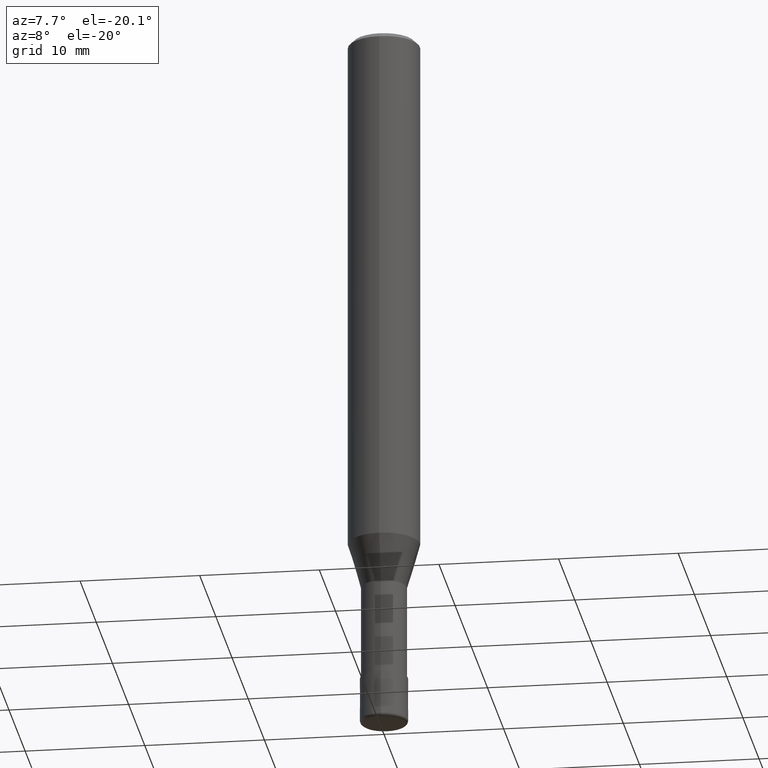
[diagram: clean part render]
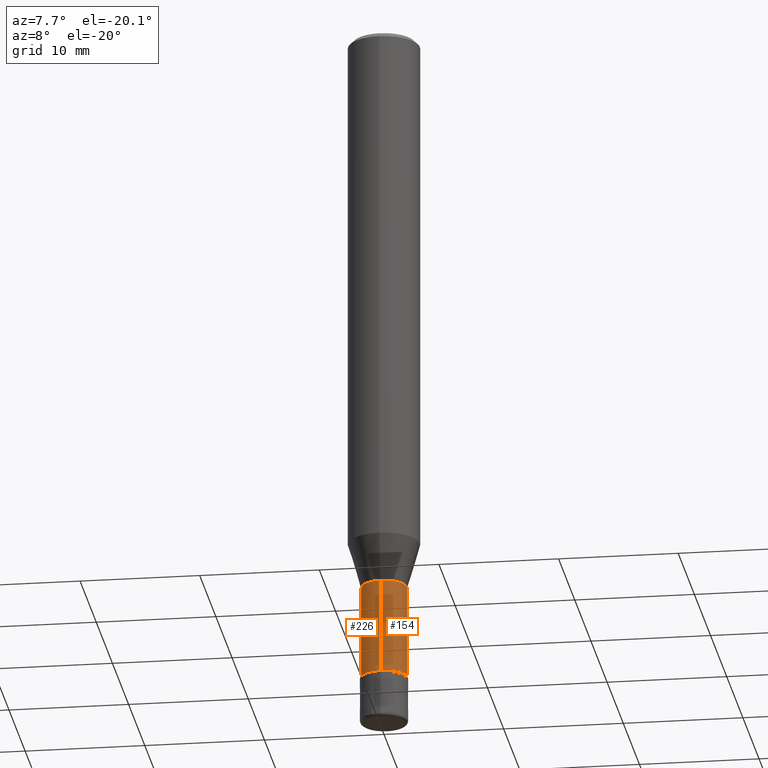
[diagram: same view with one multi-face feature highlighted, each face labeled with its STEP entity id]
A machine part, auxiliary view. The highlighted faces form ONE feature: a constant-radius fillet chain: 2 tangent blend faces with common blend radius 1.91 mm. The faces share edges in the B-rep.
Their STEP definitions:
[1] entity #226 (Cylinder):
#118=EDGE_CURVE('',#222,#132,#276,.T.);
#120=VERTEX_POINT('',#278);
#124=EDGE_CURVE('',#120,#212,#282,.T.);
#132=VERTEX_POINT('',#291);
#134=EDGE_CURVE('',#212,#222,#293,.T.);
#164=EDGE_CURVE('',#120,#132,#327,.T.);
#212=VERTEX_POINT('',#379);
#222=VERTEX_POINT('',#391);
#226=ADVANCED_FACE('',(#396),#397,.T.);
#276=LINE('',#442,#443);
#278=CARTESIAN_POINT('',(2.33893690548305E-016,-1.90995,-56.0));
#282=LINE('',#450,#451);
#291=CARTESIAN_POINT('',(0.0,1.90995,-56.0));
#293=CIRCLE('',#465,1.90995);
#327=CIRCLE('',#508,1.90995);
#379=CARTESIAN_POINT('',(2.33893690548305E-016,-1.90995,-48.0));
#391=CARTESIAN_POINT('',(0.0,1.90995,-48.0));
#396=FACE_OUTER_BOUND('',#594,.T.);
#397=CYLINDRICAL_SURFACE('',#595,1.90995);
#442=CARTESIAN_POINT('',(-2.33893690548305E-016,1.90995,-52.0));
#443=VECTOR('',#650,1.0);
#450=CARTESIAN_POINT('',(2.33893690548305E-016,-1.90995,-52.0));
#451=VECTOR('',#651,1.0);
#465=AXIS2_PLACEMENT_3D('',#659,#660,#661);
#508=AXIS2_PLACEMENT_3D('',#703,#704,#705);
#594=EDGE_LOOP('',(#790,#791,#792,#793));
#595=AXIS2_PLACEMENT_3D('',#794,#795,#796);
#650=DIRECTION('',(0.0,0.0,-1.0));
#651=DIRECTION('',(-0.0,-0.0,1.0));
#659=CARTESIAN_POINT('',(0.0,0.0,-48.0));
#660=DIRECTION('',(0.0,0.0,-1.0));
#661=DIRECTION('',(0.0,1.0,0.0));
#703=CARTESIAN_POINT('',(0.0,0.0,-56.0));
#704=DIRECTION('',(0.0,0.0,-1.0));
#705=DIRECTION('',(0.0,1.0,0.0));
#790=ORIENTED_EDGE('',*,*,#118,.T.);
#791=ORIENTED_EDGE('',*,*,#164,.F.);
#792=ORIENTED_EDGE('',*,*,#124,.T.);
#793=ORIENTED_EDGE('',*,*,#134,.T.);
#794=CARTESIAN_POINT('',(0.0,0.0,-52.0));
#795=DIRECTION('',(-0.0,-0.0,1.0));
#796=DIRECTION('',(0.0,1.0,0.0));
[2] entity #154 (Cylinder):
#118=EDGE_CURVE('',#222,#132,#276,.T.);
#120=VERTEX_POINT('',#278);
#124=EDGE_CURVE('',#120,#212,#282,.T.);
#132=VERTEX_POINT('',#291);
#150=EDGE_CURVE('',#222,#212,#309,.T.);
#154=ADVANCED_FACE('',(#313),#314,.T.);
#208=EDGE_CURVE('',#132,#120,#375,.T.);
#212=VERTEX_POINT('',#379);
#222=VERTEX_POINT('',#391);
#276=LINE('',#442,#443);
#278=CARTESIAN_POINT('',(2.33893690548305E-016,-1.90995,-56.0));
#282=LINE('',#450,#451);
#291=CARTESIAN_POINT('',(0.0,1.90995,-56.0));
#309=CIRCLE('',#487,1.90995);
#313=FACE_OUTER_BOUND('',#492,.T.);
#314=CYLINDRICAL_SURFACE('',#493,1.90995);
#375=CIRCLE('',#569,1.90995);
#379=CARTESIAN_POINT('',(2.33893690548305E-016,-1.90995,-48.0));
#391=CARTESIAN_POINT('',(0.0,1.90995,-48.0));
#442=CARTESIAN_POINT('',(-2.33893690548305E-016,1.90995,-52.0));
#443=VECTOR('',#650,1.0);
#450=CARTESIAN_POINT('',(2.33893690548305E-016,-1.90995,-52.0));
#451=VECTOR('',#651,1.0);
#487=AXIS2_PLACEMENT_3D('',#672,#673,#674);
#492=EDGE_LOOP('',(#679,#680,#681,#682));
#493=AXIS2_PLACEMENT_3D('',#683,#684,#685);
#569=AXIS2_PLACEMENT_3D('',#760,#761,#762);
#650=DIRECTION('',(0.0,0.0,-1.0));
#651=DIRECTION('',(-0.0,-0.0,1.0));
#672=CARTESIAN_POINT('',(0.0,0.0,-48.0));
#673=DIRECTION('',(0.0,0.0,-1.0));
#674=DIRECTION('',(0.0,1.0,0.0));
#679=ORIENTED_EDGE('',*,*,#118,.F.);
#680=ORIENTED_EDGE('',*,*,#150,.T.);
#681=ORIENTED_EDGE('',*,*,#124,.F.);
#682=ORIENTED_EDGE('',*,*,#208,.F.);
#683=CARTESIAN_POINT('',(0.0,0.0,-52.0));
#684=DIRECTION('',(-0.0,-0.0,1.0));
#685=DIRECTION('',(0.0,1.0,0.0));
#760=CARTESIAN_POINT('',(0.0,0.0,-56.0));
#761=DIRECTION('',(0.0,0.0,-1.0));
#762=DIRECTION('',(0.0,1.0,0.0));